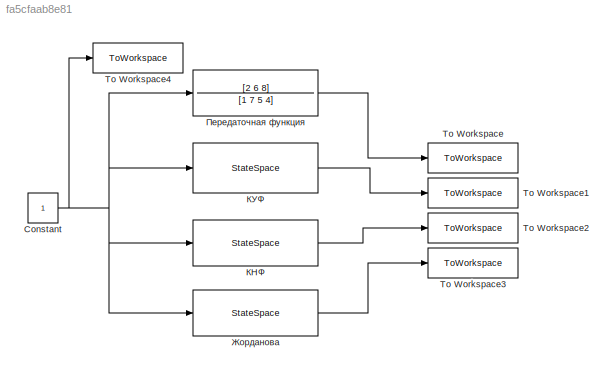
MODEL slx_fa5cfaab8e81
KIND model
CONFIG AbsTol = auto
CONFIG EnableMultiTasking = off
CONFIG FixedStep = auto
CONFIG MaxStep = auto
CONFIG MinStep = auto
CONFIG RelTol = 1e-3
CONFIG SampleTimeConstraint = Unconstrained
CONFIG SolverName = VariableStepAuto
CONFIG StartTime = 0.0
CONFIG StopTime = 10.0
BLOCK [Constant] Constant
  SampleTime = -1
BLOCK [ToWorkspace] To Workspace
  FixptAsFi = on
  MaxDataPoints = inf
  Ports = [1]
  SampleTime = -1
  SaveFormat = Timeseries
  VariableName = simout1
BLOCK [ToWorkspace] To Workspace1
  FixptAsFi = on
  MaxDataPoints = inf
  Ports = [1]
  SampleTime = -1
  SaveFormat = Timeseries
  VariableName = simout2
BLOCK [ToWorkspace] To Workspace2
  FixptAsFi = on
  MaxDataPoints = inf
  Ports = [1]
  SampleTime = -1
  SaveFormat = Timeseries
  VariableName = simout3
BLOCK [ToWorkspace] To Workspace3
  FixptAsFi = on
  MaxDataPoints = inf
  Ports = [1]
  SampleTime = -1
  SaveFormat = Timeseries
  VariableName = simout4
BLOCK [ToWorkspace] To Workspace4
  FixptAsFi = on
  MaxDataPoints = inf
  Ports = [1]
  SampleTime = -1
  SaveFormat = Timeseries
  VariableName = in
BLOCK [StateSpace] Жорданова
  A = Aj
  B = Bj
  C = Cj
  D = 0
  InitialCondition = 0
  Ports = [1, 1]
BLOCK [StateSpace] КНФ
  A = A1
  B = B1
  C = C1
  D = 0
  InitialCondition = 0
  Ports = [1, 1]
BLOCK [StateSpace] КУФ
  A = A
  B = B
  C = C
  D = 0
  InitialCondition = 0
  Ports = [1, 1]
BLOCK [TransferFcn] Передаточная функция
  Denominator = [1 7 5 4]
  Numerator = [2 6 8]
NET Constant:1 -> To Workspace4:1, Жорданова:1, КНФ:1, КУФ:1, Передаточная функция:1
LINE Жорданова:1 -> To Workspace3:1
LINE КНФ:1 -> To Workspace2:1
LINE КУФ:1 -> To Workspace1:1
LINE Передаточная функция:1 -> To Workspace:1
note: NET lines group one-source signal fan-out (src -> all destinations, sorted); 1:1 wires keep LINE
